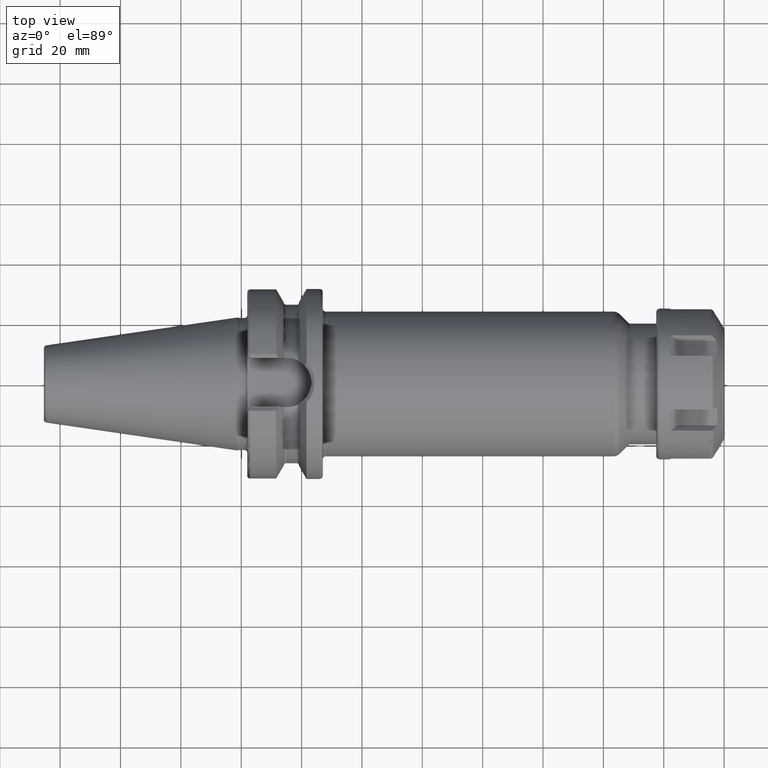
[diagram: clean part render]
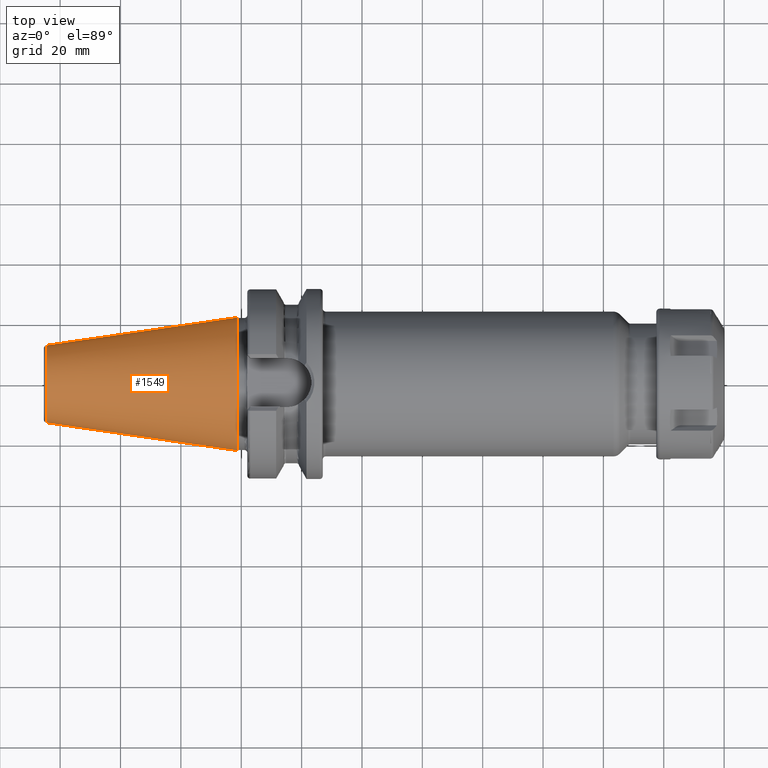
[diagram: same view with one face highlighted and labeled with its STEP entity id]
A machine part, top view. The second image highlights one B-rep face of the part: STEP entity #1549.
In plain terms, the highlighted conical surface has half-angle 8.298 deg.
Its self-contained STEP definition (entity closure, byte-faithful):
#37=CARTESIAN_POINT('',(-6.454431866917E1,0.E0,0.E0));
#38=DIRECTION('',(1.E0,0.E0,0.E0));
#39=DIRECTION('',(0.E0,1.E0,0.E0));
#40=AXIS2_PLACEMENT_3D('',#37,#38,#39);
#42=CARTESIAN_POINT('',(-1.266732031557E0,0.E0,0.E0));
#43=DIRECTION('',(1.E0,0.E0,0.E0));
#44=DIRECTION('',(0.E0,1.E0,0.E0));
#45=AXIS2_PLACEMENT_3D('',#42,#43,#44);
#47=DIRECTION('',(-9.895312636440E-1,-1.443186691705E-1,0.E0));
#48=VECTOR('',#47,6.394703124850E1);
#49=CARTESIAN_POINT('',(-1.266732031557E0,2.204025284980E1,0.E0));
#50=LINE('',#49,#48);
#51=DIRECTION('',(-9.895312636440E-1,1.443186691705E-1,0.E0));
#52=VECTOR('',#51,6.394703124850E1);
#53=CARTESIAN_POINT('',(-1.266732031557E0,-2.204025284980E1,0.E0));
#54=LINE('',#53,#52);
#1226=CARTESIAN_POINT('',(-6.454431866917E1,1.281150240261E1,0.E0));
#1228=VERTEX_POINT('',#1226);
#1230=CARTESIAN_POINT('',(-6.454431866917E1,-1.281150240261E1,0.E0));
#1232=VERTEX_POINT('',#1230);
#1445=CARTESIAN_POINT('',(-1.266732031557E0,2.204025284980E1,0.E0));
#1446=VERTEX_POINT('',#1445);
#1447=CARTESIAN_POINT('',(-1.266732031557E0,-2.204025284980E1,0.E0));
#1448=VERTEX_POINT('',#1447);
#1535=CARTESIAN_POINT('',(-3.290552535036E1,0.E0,0.E0));
#1536=DIRECTION('',(1.E0,0.E0,0.E0));
#1537=DIRECTION('',(0.E0,-1.E0,0.E0));
#1538=AXIS2_PLACEMENT_3D('',#1535,#1536,#1537);
#1539=CONICAL_SURFACE('',#1538,1.742587762621E1,8.297826828206E0);
#1541=ORIENTED_EDGE('',*,*,#1540,.F.);
#1543=ORIENTED_EDGE('',*,*,#1542,.T.);
#1545=ORIENTED_EDGE('',*,*,#1544,.T.);
#1546=ORIENTED_EDGE('',*,*,#1528,.F.);
#1547=EDGE_LOOP('',(#1541,#1543,#1545,#1546));
#1548=FACE_OUTER_BOUND('',#1547,.F.);
#1549=ADVANCED_FACE('',(#1548),#1539,.T.);
#41=CIRCLE('',#40,1.281150240261E1);
#46=CIRCLE('',#45,2.204025284980E1);
#1528=EDGE_CURVE('',#1228,#1232,#41,.T.);
#1540=EDGE_CURVE('',#1446,#1228,#50,.T.);
#1542=EDGE_CURVE('',#1446,#1448,#46,.T.);
#1544=EDGE_CURVE('',#1448,#1232,#54,.T.);